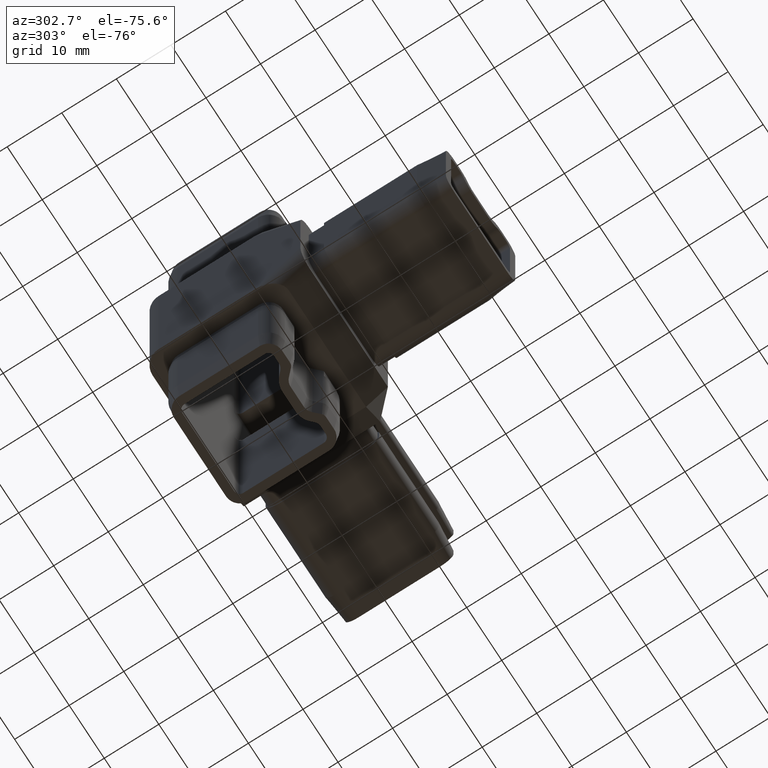
[diagram: clean part render]
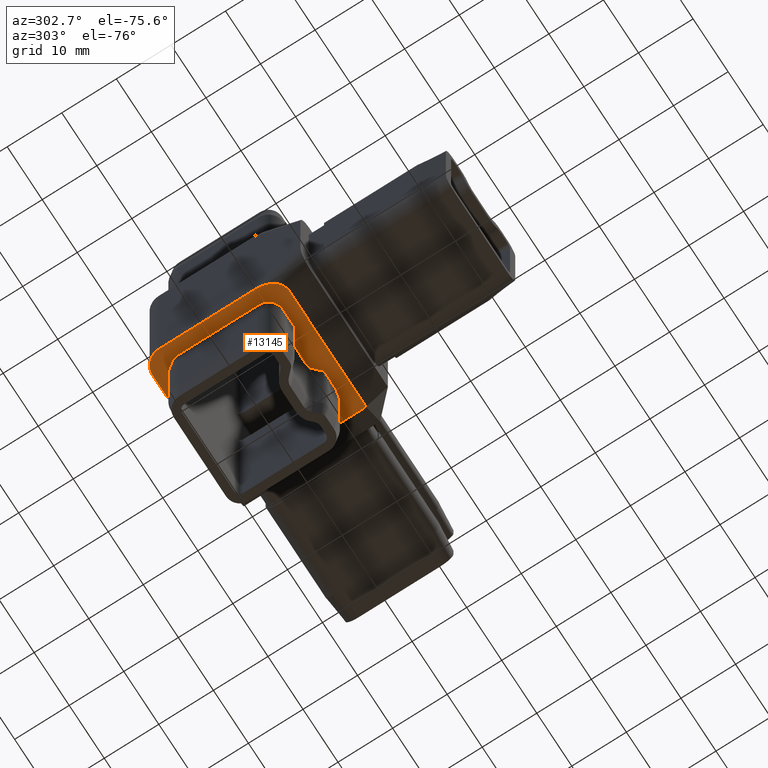
[diagram: same view with one face highlighted and labeled with its STEP entity id]
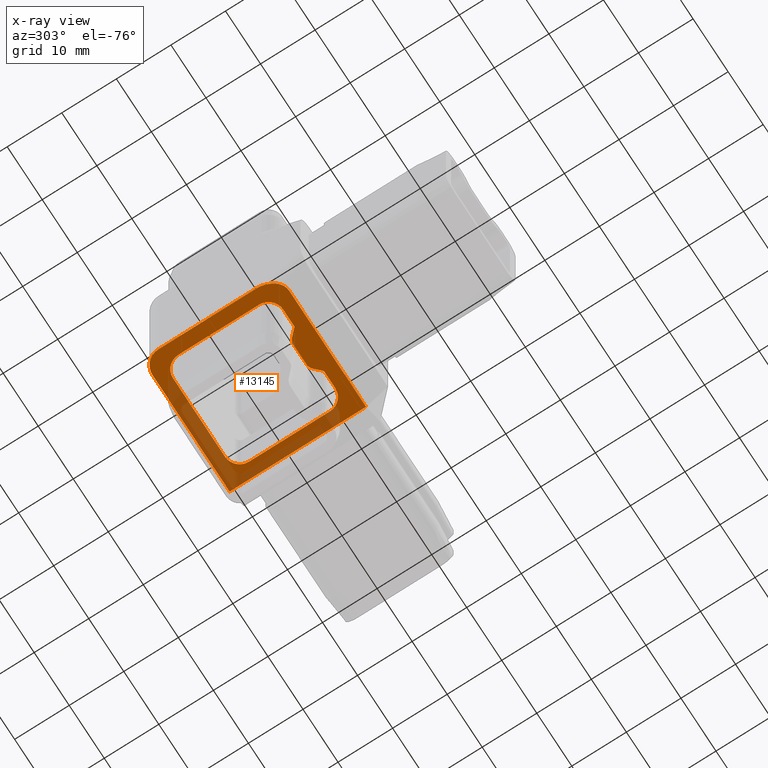
[diagram: x-ray of the same camera — body ghosted, the highlighted face saturated]
A machine part, auxiliary view. The second image highlights one B-rep face of the part: STEP entity #13145.
The next image is the same camera in x-ray: the body ghosted, the highlighted face saturated — about 33% of this face is hidden behind the body in this view.
In plain terms, the highlighted planar face has unit normal (0, 0, 1).
Its self-contained STEP definition (entity closure, byte-faithful):
#36 = CARTESIAN_POINT ( 'NONE',  ( -6.221320343559641600, -8.099999999999997900, -16.50000000000000000 ) ) ;
#83 = VERTEX_POINT ( 'NONE', #4534 ) ;
#98 = CARTESIAN_POINT ( 'NONE',  ( -11.50000000000000400, -10.50000000000001200, -16.50000000000000000 ) ) ;
#159 = DIRECTION ( 'NONE',  ( 1.000000000000000000, 0.0000000000000000000, 0.0000000000000000000 ) ) ;
#165 = CARTESIAN_POINT ( 'NONE',  ( -14.50000000000000400, -6.257359312880742800, -16.50000000000000000 ) ) ;
#200 = DIRECTION ( 'NONE',  ( -1.000000000000000000, -0.0000000000000000000, -0.0000000000000000000 ) ) ;
#285 = VECTOR ( 'NONE', #200, 1000.000000000000000 ) ;
#444 = ORIENTED_EDGE ( 'NONE', *, *, #2377, .F. ) ;
#459 = DIRECTION ( 'NONE',  ( -1.000000000000000000, -1.172110456741084800E-016, 0.0000000000000000000 ) ) ;
#729 = CARTESIAN_POINT ( 'NONE',  ( 5.400000000000009200, -8.099999999999996100, -16.50000000000000000 ) ) ;
#837 = VERTEX_POINT ( 'NONE', #7664 ) ;
#1177 = VECTOR ( 'NONE', #459, 1000.000000000000000 ) ;
#1194 = CARTESIAN_POINT ( 'NONE',  ( 10.49999999999997900, 14.50000000000000200, -16.50000000000000000 ) ) ;
#1303 = CARTESIAN_POINT ( 'NONE',  ( -9.400000000000002100, 12.09999999999999800, -16.50000000000000000 ) ) ;
#1673 = DIRECTION ( 'NONE',  ( 1.000000000000000000, 0.0000000000000000000, 0.0000000000000000000 ) ) ;
#1718 = VERTEX_POINT ( 'NONE', #14688 ) ;
#1730 = ORIENTED_EDGE ( 'NONE', *, *, #6695, .T. ) ;
#1778 = LINE ( 'NONE', #16740, #19009 ) ;
#1841 = CARTESIAN_POINT ( 'NONE',  ( 5.400000000000009200, 12.10000000000000100, -16.50000000000000000 ) ) ;
#1910 = CARTESIAN_POINT ( 'NONE',  ( -0.1213203435596335600, -7.899999999999999500, -16.50000000000000000 ) ) ;
#1938 = VECTOR ( 'NONE', #14617, 1000.000000000000000 ) ;
#1964 = ORIENTED_EDGE ( 'NONE', *, *, #6295, .F. ) ;
#1995 = VERTEX_POINT ( 'NONE', #11486 ) ;
#2312 = DIRECTION ( 'NONE',  ( 0.0000000000000000000, 0.0000000000000000000, -1.000000000000000000 ) ) ;
#2348 = VERTEX_POINT ( 'NONE', #13673 ) ;
#2377 = EDGE_CURVE ( 'NONE', #4821, #83, #7140, .T. ) ;
#2433 = CIRCLE ( 'NONE', #12537, 2.699999999999999300 ) ;
#2608 = EDGE_CURVE ( 'NONE', #19842, #83, #16073, .T. ) ;
#2671 = AXIS2_PLACEMENT_3D ( 'NONE', #18045, #2312, #8609 ) ;
#2893 = VERTEX_POINT ( 'NONE', #3545 ) ;
#3131 = CARTESIAN_POINT ( 'NONE',  ( -0.1213203435596336400, -6.399999999999998600, -16.50000000000000000 ) ) ;
#3212 = DIRECTION ( 'NONE',  ( 0.0000000000000000000, -1.000000000000000000, 0.0000000000000000000 ) ) ;
#3400 = CARTESIAN_POINT ( 'NONE',  ( -9.400000000000005700, -8.099999999999997900, -16.50000000000000000 ) ) ;
#3509 = ORIENTED_EDGE ( 'NONE', *, *, #13232, .T. ) ;
#3545 = CARTESIAN_POINT ( 'NONE',  ( -4.939339828220180800, -6.839339828220179400, -16.50000000000000000 ) ) ;
#3563 = ORIENTED_EDGE ( 'NONE', *, *, #7259, .F. ) ;
#3633 = VERTEX_POINT ( 'NONE', #11514 ) ;
#3717 = EDGE_CURVE ( 'NONE', #14005, #1995, #13888, .T. ) ;
#3771 = ORIENTED_EDGE ( 'NONE', *, *, #3911, .T. ) ;
#3830 = DIRECTION ( 'NONE',  ( -1.000000000000000000, -1.172110456741084800E-016, 0.0000000000000000000 ) ) ;
#3911 = EDGE_CURVE ( 'NONE', #13245, #18154, #19910, .T. ) ;
#4042 = VERTEX_POINT ( 'NONE', #1194 ) ;
#4212 = CARTESIAN_POINT ( 'NONE',  ( 0.9393398282201910200, -6.839339828220179400, -16.50000000000000000 ) ) ;
#4281 = AXIS2_PLACEMENT_3D ( 'NONE', #18418, #12484, #7840 ) ;
#4359 = DIRECTION ( 'NONE',  ( 0.7071067811865456900, -0.7071067811865493500, 0.0000000000000000000 ) ) ;
#4466 = ORIENTED_EDGE ( 'NONE', *, *, #18775, .F. ) ;
#4534 = CARTESIAN_POINT ( 'NONE',  ( 0.0000000000000000000, 12.10000000000000100, -16.50000000000000000 ) ) ;
#4609 = DIRECTION ( 'NONE',  ( 0.0000000000000000000, 0.0000000000000000000, -1.000000000000000000 ) ) ;
#4664 = CARTESIAN_POINT ( 'NONE',  ( -13.25735931288072100, -10.50000000000002100, -16.50000000000000400 ) ) ;
#4821 = VERTEX_POINT ( 'NONE', #1303 ) ;
#5306 = CARTESIAN_POINT ( 'NONE',  ( -0.1213203435596337100, -6.399999999999999500, -16.50000000000000000 ) ) ;
#5419 = CIRCLE ( 'NONE', #6826, 2.699999999999999300 ) ;
#5435 = VECTOR ( 'NONE', #11904, 1000.000000000000000 ) ;
#5485 = EDGE_CURVE ( 'NONE', #2893, #8996, #16955, .T. ) ;
#5655 = CARTESIAN_POINT ( 'NONE',  ( 10.49999999999998800, 1.256179068810789600E-015, -16.50000000000000000 ) ) ;
#5798 = CARTESIAN_POINT ( 'NONE',  ( -6.280895344053965900E-016, -10.50000000000001200, -16.50000000000000000 ) ) ;
#6116 = ORIENTED_EDGE ( 'NONE', *, *, #12529, .F. ) ;
#6226 = VECTOR ( 'NONE', #8914, 1000.000000000000000 ) ;
#6295 = EDGE_CURVE ( 'NONE', #1718, #1995, #19845, .T. ) ;
#6297 = CARTESIAN_POINT ( 'NONE',  ( -12.10000000000000300, -5.399999999999998600, -16.50000000000000000 ) ) ;
#6444 = ORIENTED_EDGE ( 'NONE', *, *, #17780, .T. ) ;
#6695 = EDGE_CURVE ( 'NONE', #18665, #2893, #8361, .T. ) ;
#6729 = VECTOR ( 'NONE', #3830, 1000.000000000000000 ) ;
#6738 = DIRECTION ( 'NONE',  ( 1.000000000000000000, 0.0000000000000000000, 0.0000000000000000000 ) ) ;
#6826 = AXIS2_PLACEMENT_3D ( 'NONE', #16105, #19354, #17806 ) ;
#6832 = PLANE ( 'NONE',  #13249 ) ;
#7140 = LINE ( 'NONE', #12607, #11730 ) ;
#7259 = EDGE_CURVE ( 'NONE', #19842, #2348, #5419, .T. ) ;
#7428 = FACE_OUTER_BOUND ( 'NONE', #17566, .T. ) ;
#7554 = EDGE_CURVE ( 'NONE', #14454, #14492, #2433, .T. ) ;
#7589 = VECTOR ( 'NONE', #15126, 1000.000000000000000 ) ;
#7664 = CARTESIAN_POINT ( 'NONE',  ( 8.100000000000006800, -5.399999999999998600, -16.50000000000000000 ) ) ;
#7689 = VERTEX_POINT ( 'NONE', #3131 ) ;
#7780 = CARTESIAN_POINT ( 'NONE',  ( -12.10000000000000300, -5.399999999999998600, -16.50000000000000000 ) ) ;
#7840 = DIRECTION ( 'NONE',  ( -1.000000000000000000, 0.0000000000000000000, 0.0000000000000000000 ) ) ;
#8167 = CARTESIAN_POINT ( 'NONE',  ( -11.50000000000000400, -10.50000000000001200, -16.50000000000000000 ) ) ;
#8174 = CIRCLE ( 'NONE', #4281, 2.699999999999995700 ) ;
#8361 = LINE ( 'NONE', #8630, #16054 ) ;
#8381 = EDGE_CURVE ( 'NONE', #14492, #3633, #14106, .T. ) ;
#8537 = CARTESIAN_POINT ( 'NONE',  ( -3.878679656440359400, -6.399999999999999500, -16.50000000000000000 ) ) ;
#8553 = LINE ( 'NONE', #18634, #285 ) ;
#8609 = DIRECTION ( 'NONE',  ( -1.000000000000000000, 0.0000000000000000000, 0.0000000000000000000 ) ) ;
#8630 = CARTESIAN_POINT ( 'NONE',  ( -4.939339828220180800, -6.839339828220179400, -16.50000000000000000 ) ) ;
#8719 = CARTESIAN_POINT ( 'NONE',  ( 3.121320343559647300, -6.899999999999998600, -16.50000000000000000 ) ) ;
#8914 = DIRECTION ( 'NONE',  ( 1.196361017915039200E-016, -1.000000000000000000, 0.0000000000000000000 ) ) ;
#8996 = VERTEX_POINT ( 'NONE', #8537 ) ;
#9107 = AXIS2_PLACEMENT_3D ( 'NONE', #18918, #17160, #159 ) ;
#9118 = DIRECTION ( 'NONE',  ( -1.000000000000000000, 0.0000000000000000000, 0.0000000000000000000 ) ) ;
#9189 = CARTESIAN_POINT ( 'NONE',  ( -9.400000000000005700, -5.399999999999998600, -16.50000000000000000 ) ) ;
#9252 = LINE ( 'NONE', #14238, #1938 ) ;
#9391 = LINE ( 'NONE', #729, #6729 ) ;
#9433 = EDGE_CURVE ( 'NONE', #18154, #12807, #13432, .T. ) ;
#9515 = ORIENTED_EDGE ( 'NONE', *, *, #13514, .F. ) ;
#9672 = DIRECTION ( 'NONE',  ( 0.0000000000000000000, 0.0000000000000000000, -1.000000000000000000 ) ) ;
#9920 = CARTESIAN_POINT ( 'NONE',  ( 0.0000000000000000000, 0.0000000000000000000, -16.50000000000000000 ) ) ;
#10229 = EDGE_CURVE ( 'NONE', #16058, #18665, #19129, .T. ) ;
#10262 = DIRECTION ( 'NONE',  ( -1.000000000000000000, 0.0000000000000000000, 0.0000000000000000000 ) ) ;
#10802 = ORIENTED_EDGE ( 'NONE', *, *, #14394, .T. ) ;
#11042 = CARTESIAN_POINT ( 'NONE',  ( -14.50000000000000500, -8.742640687119307000, -16.50000000000000400 ) ) ;
#11427 = DIRECTION ( 'NONE',  ( 0.0000000000000000000, 0.0000000000000000000, 1.000000000000000000 ) ) ;
#11486 = CARTESIAN_POINT ( 'NONE',  ( 2.221320343559642500, -8.099999999999996100, -16.50000000000000000 ) ) ;
#11514 = CARTESIAN_POINT ( 'NONE',  ( -12.10000000000000300, 9.400000000000002100, -16.50000000000000000 ) ) ;
#11730 = VECTOR ( 'NONE', #1673, 1000.000000000000000 ) ;
#11804 = CARTESIAN_POINT ( 'NONE',  ( -11.50000000000000700, 14.50000000000000200, -16.50000000000000000 ) ) ;
#11891 = ORIENTED_EDGE ( 'NONE', *, *, #10229, .T. ) ;
#11904 = DIRECTION ( 'NONE',  ( -1.000000000000000000, -0.0000000000000000000, -0.0000000000000000000 ) ) ;
#12152 = CARTESIAN_POINT ( 'NONE',  ( -7.121320343559641900, -6.899999999999998600, -16.50000000000000000 ) ) ;
#12305 = AXIS2_PLACEMENT_3D ( 'NONE', #12152, #16787, #9118 ) ;
#12333 = CARTESIAN_POINT ( 'NONE',  ( -3.878679656440359400, -7.899999999999999500, -16.50000000000000000 ) ) ;
#12334 = ORIENTED_EDGE ( 'NONE', *, *, #3717, .T. ) ;
#12352 = VERTEX_POINT ( 'NONE', #17936 ) ;
#12484 = DIRECTION ( 'NONE',  ( 0.0000000000000000000, 0.0000000000000000000, -1.000000000000000000 ) ) ;
#12529 = EDGE_CURVE ( 'NONE', #16058, #14454, #9391, .T. ) ;
#12537 = AXIS2_PLACEMENT_3D ( 'NONE', #9189, #13763, #18588 ) ;
#12607 = CARTESIAN_POINT ( 'NONE',  ( -9.400000000000002100, 12.09999999999999800, -16.50000000000000000 ) ) ;
#12807 = VERTEX_POINT ( 'NONE', #13111 ) ;
#13111 = CARTESIAN_POINT ( 'NONE',  ( -14.50000000000000400, -6.257359312880742800, -16.50000000000000000 ) ) ;
#13145 = ADVANCED_FACE ( 'NONE', ( #19274, #7428 ), #6832, .F. ) ;
#13232 = EDGE_CURVE ( 'NONE', #4042, #13245, #14418, .T. ) ;
#13245 = VERTEX_POINT ( 'NONE', #16505 ) ;
#13249 = AXIS2_PLACEMENT_3D ( 'NONE', #9920, #11427, #19376 ) ;
#13347 = VECTOR ( 'NONE', #6738, 1000.000000000000000 ) ;
#13432 =( BOUNDED_CURVE ( )  B_SPLINE_CURVE ( 3, ( #98, #4664, #11042, #165 ),
 .UNSPECIFIED., .F., .T. ) 
 B_SPLINE_CURVE_WITH_KNOTS ( ( 4, 4 ),
 ( 1.691909977029925600E-016, 1.570796326794898600 ),
 .UNSPECIFIED. ) 
 CURVE ( )  GEOMETRIC_REPRESENTATION_ITEM ( )  RATIONAL_B_SPLINE_CURVE ( ( 1.000000000000000000, 0.8047378541243646000, 0.8047378541243646000, 1.000000000000000000 ) ) 
 REPRESENTATION_ITEM ( '' )  );
#13512 = ORIENTED_EDGE ( 'NONE', *, *, #2608, .T. ) ;
#13514 = EDGE_CURVE ( 'NONE', #837, #1718, #8174, .T. ) ;
#13600 = ORIENTED_EDGE ( 'NONE', *, *, #8381, .F. ) ;
#13673 = CARTESIAN_POINT ( 'NONE',  ( 8.100000000000006800, 9.400000000000002100, -16.50000000000000000 ) ) ;
#13763 = DIRECTION ( 'NONE',  ( 0.0000000000000000000, 0.0000000000000000000, -1.000000000000000000 ) ) ;
#13888 = CIRCLE ( 'NONE', #18818, 1.500000000000000400 ) ;
#13894 = AXIS2_PLACEMENT_3D ( 'NONE', #1910, #9672, #18804 ) ;
#14005 = VERTEX_POINT ( 'NONE', #15001 ) ;
#14078 = VECTOR ( 'NONE', #3212, 1000.000000000000000 ) ;
#14106 = LINE ( 'NONE', #7780, #14578 ) ;
#14228 = ORIENTED_EDGE ( 'NONE', *, *, #7554, .F. ) ;
#14238 = CARTESIAN_POINT ( 'NONE',  ( -14.50000000000000500, 14.50000000000000200, -16.50000000000000000 ) ) ;
#14394 = EDGE_CURVE ( 'NONE', #14986, #14005, #1778, .T. ) ;
#14418 = LINE ( 'NONE', #5655, #6226 ) ;
#14454 = VERTEX_POINT ( 'NONE', #3400 ) ;
#14456 = ORIENTED_EDGE ( 'NONE', *, *, #16786, .F. ) ;
#14457 = EDGE_CURVE ( 'NONE', #12352, #15370, #17521, .T. ) ;
#14492 = VERTEX_POINT ( 'NONE', #6297 ) ;
#14526 = CIRCLE ( 'NONE', #2671, 2.699999999999997500 ) ;
#14563 = DIRECTION ( 'NONE',  ( 0.7071067811865479100, 0.7071067811865472400, 0.0000000000000000000 ) ) ;
#14578 = VECTOR ( 'NONE', #17075, 1000.000000000000000 ) ;
#14617 = DIRECTION ( 'NONE',  ( 1.196361017915039500E-016, -1.000000000000000000, 0.0000000000000000000 ) ) ;
#14688 = CARTESIAN_POINT ( 'NONE',  ( 5.400000000000009200, -8.099999999999996100, -16.50000000000000000 ) ) ;
#14986 = VERTEX_POINT ( 'NONE', #4212 ) ;
#15001 = CARTESIAN_POINT ( 'NONE',  ( 2.060660171779822700, -7.960660171779817800, -16.50000000000000000 ) ) ;
#15059 = CIRCLE ( 'NONE', #13894, 1.500000000000000200 ) ;
#15126 = DIRECTION ( 'NONE',  ( -1.000000000000000000, 5.981805089575197400E-017, 0.0000000000000000000 ) ) ;
#15370 = VERTEX_POINT ( 'NONE', #11804 ) ;
#15424 = ORIENTED_EDGE ( 'NONE', *, *, #16173, .T. ) ;
#15432 = DIRECTION ( 'NONE',  ( 1.000000000000000000, 0.0000000000000000000, 0.0000000000000000000 ) ) ;
#15697 = ORIENTED_EDGE ( 'NONE', *, *, #14457, .T. ) ;
#15927 = ORIENTED_EDGE ( 'NONE', *, *, #5485, .T. ) ;
#15989 = LINE ( 'NONE', #18656, #14078 ) ;
#16054 = VECTOR ( 'NONE', #14563, 999.9999999999998900 ) ;
#16058 = VERTEX_POINT ( 'NONE', #36 ) ;
#16073 = LINE ( 'NONE', #17923, #5435 ) ;
#16105 = CARTESIAN_POINT ( 'NONE',  ( 5.400000000000009200, 9.400000000000002100, -16.50000000000000000 ) ) ;
#16173 = EDGE_CURVE ( 'NONE', #7689, #14986, #15059, .T. ) ;
#16505 = CARTESIAN_POINT ( 'NONE',  ( 10.49999999999998900, -10.50000000000001200, -16.50000000000000000 ) ) ;
#16659 = CARTESIAN_POINT ( 'NONE',  ( -6.060660171779821000, -7.960660171779819500, -16.50000000000000000 ) ) ;
#16740 = CARTESIAN_POINT ( 'NONE',  ( 2.060660171779822700, -7.960660171779817800, -16.50000000000000000 ) ) ;
#16786 = EDGE_CURVE ( 'NONE', #4042, #15370, #8553, .T. ) ;
#16787 = DIRECTION ( 'NONE',  ( -0.0000000000000000000, -0.0000000000000000000, 1.000000000000000000 ) ) ;
#16955 = CIRCLE ( 'NONE', #18675, 1.499999999999999100 ) ;
#16970 = LINE ( 'NONE', #5306, #13347 ) ;
#17075 = DIRECTION ( 'NONE',  ( 0.0000000000000000000, 1.000000000000000000, 0.0000000000000000000 ) ) ;
#17160 = DIRECTION ( 'NONE',  ( -0.0000000000000000000, -0.0000000000000000000, -1.000000000000000000 ) ) ;
#17325 = ORIENTED_EDGE ( 'NONE', *, *, #19441, .F. ) ;
#17521 = CIRCLE ( 'NONE', #9107, 2.999999999999999100 ) ;
#17566 = EDGE_LOOP ( 'NONE', ( #18856, #15697, #14456, #3509, #3771, #20064 ) ) ;
#17780 = EDGE_CURVE ( 'NONE', #8996, #7689, #16970, .T. ) ;
#17806 = DIRECTION ( 'NONE',  ( -1.000000000000000000, 0.0000000000000000000, 0.0000000000000000000 ) ) ;
#17923 = CARTESIAN_POINT ( 'NONE',  ( 5.400000000000009200, 12.10000000000000100, -16.50000000000000000 ) ) ;
#17936 = CARTESIAN_POINT ( 'NONE',  ( -14.50000000000000500, 11.50000000000000400, -16.50000000000000000 ) ) ;
#18045 = CARTESIAN_POINT ( 'NONE',  ( -9.400000000000005700, 9.400000000000002100, -16.50000000000000000 ) ) ;
#18154 = VERTEX_POINT ( 'NONE', #8167 ) ;
#18418 = CARTESIAN_POINT ( 'NONE',  ( 5.400000000000011000, -5.399999999999998600, -16.50000000000000000 ) ) ;
#18588 = DIRECTION ( 'NONE',  ( -1.000000000000000000, 0.0000000000000000000, 0.0000000000000000000 ) ) ;
#18634 = CARTESIAN_POINT ( 'NONE',  ( -14.50000000000000500, 14.50000000000000200, -16.50000000000000000 ) ) ;
#18656 = CARTESIAN_POINT ( 'NONE',  ( 8.100000000000006800, 9.400000000000002100, -16.50000000000000000 ) ) ;
#18665 = VERTEX_POINT ( 'NONE', #16659 ) ;
#18675 = AXIS2_PLACEMENT_3D ( 'NONE', #12333, #4609, #15432 ) ;
#18775 = EDGE_CURVE ( 'NONE', #2348, #837, #15989, .T. ) ;
#18804 = DIRECTION ( 'NONE',  ( -1.000000000000000000, 0.0000000000000000000, 0.0000000000000000000 ) ) ;
#18818 = AXIS2_PLACEMENT_3D ( 'NONE', #8719, #19521, #10262 ) ;
#18856 = ORIENTED_EDGE ( 'NONE', *, *, #18936, .F. ) ;
#18898 = EDGE_LOOP ( 'NONE', ( #1964, #9515, #4466, #3563, #13512, #444, #17325, #13600, #14228, #6116, #11891, #1730, #15927, #6444, #15424, #10802, #12334 ) ) ;
#18918 = CARTESIAN_POINT ( 'NONE',  ( -11.50000000000000700, 11.50000000000000400, -16.50000000000000000 ) ) ;
#18936 = EDGE_CURVE ( 'NONE', #12352, #12807, #9252, .T. ) ;
#19009 = VECTOR ( 'NONE', #4359, 1000.000000000000000 ) ;
#19021 = CARTESIAN_POINT ( 'NONE',  ( 5.400000000000009200, -8.099999999999996100, -16.50000000000000000 ) ) ;
#19129 = CIRCLE ( 'NONE', #12305, 1.499999999999998700 ) ;
#19274 = FACE_BOUND ( 'NONE', #18898, .T. ) ;
#19354 = DIRECTION ( 'NONE',  ( 0.0000000000000000000, 0.0000000000000000000, -1.000000000000000000 ) ) ;
#19376 = DIRECTION ( 'NONE',  ( 1.000000000000000000, 0.0000000000000000000, -0.0000000000000000000 ) ) ;
#19441 = EDGE_CURVE ( 'NONE', #3633, #4821, #14526, .T. ) ;
#19521 = DIRECTION ( 'NONE',  ( -0.0000000000000000000, -0.0000000000000000000, 1.000000000000000000 ) ) ;
#19842 = VERTEX_POINT ( 'NONE', #1841 ) ;
#19845 = LINE ( 'NONE', #19021, #1177 ) ;
#19910 = LINE ( 'NONE', #5798, #7589 ) ;
#20064 = ORIENTED_EDGE ( 'NONE', *, *, #9433, .T. ) ;